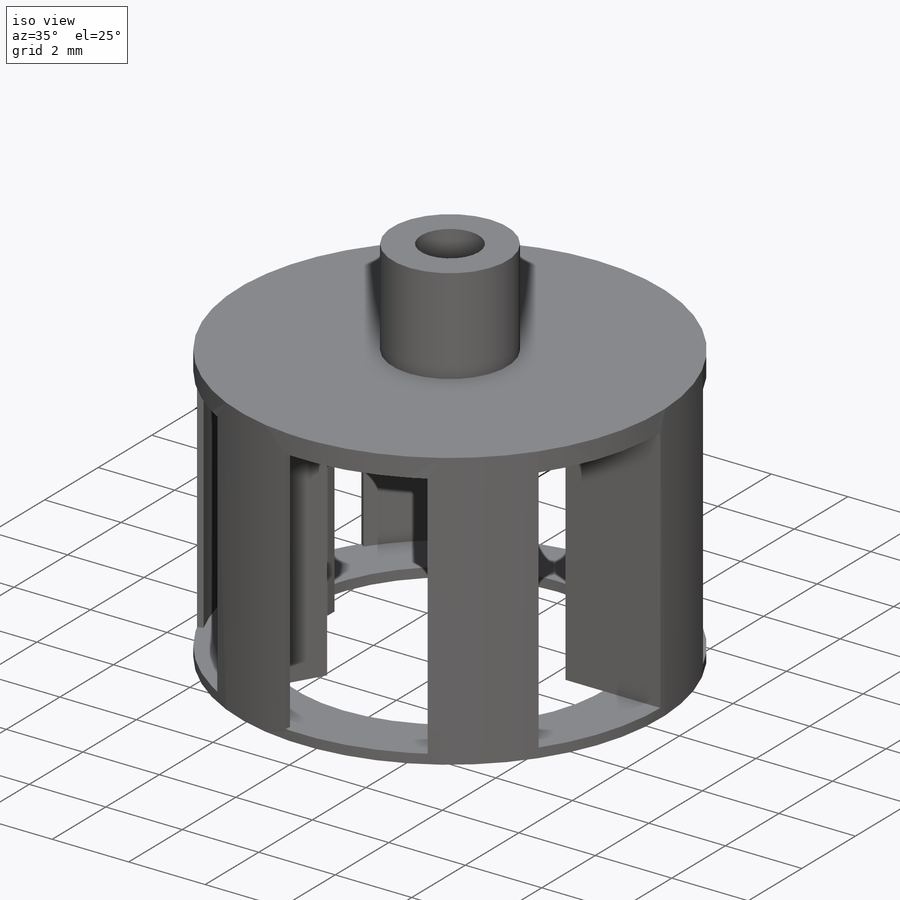
[diagram: iso view]
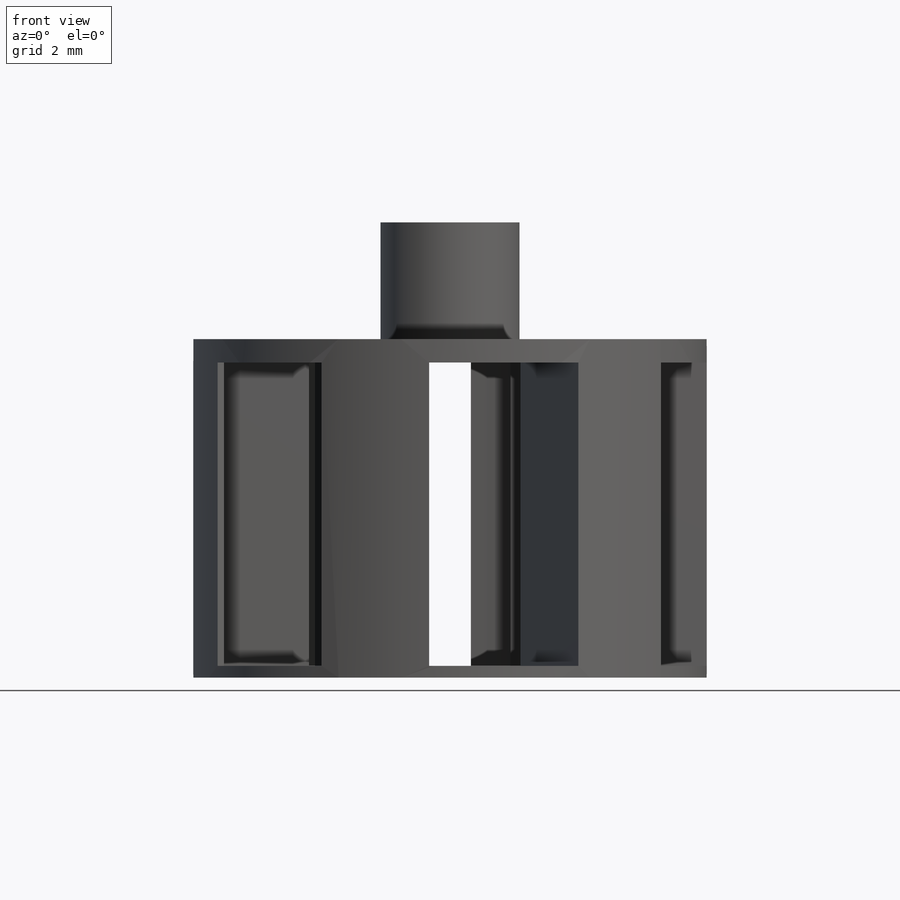
[diagram: front view]
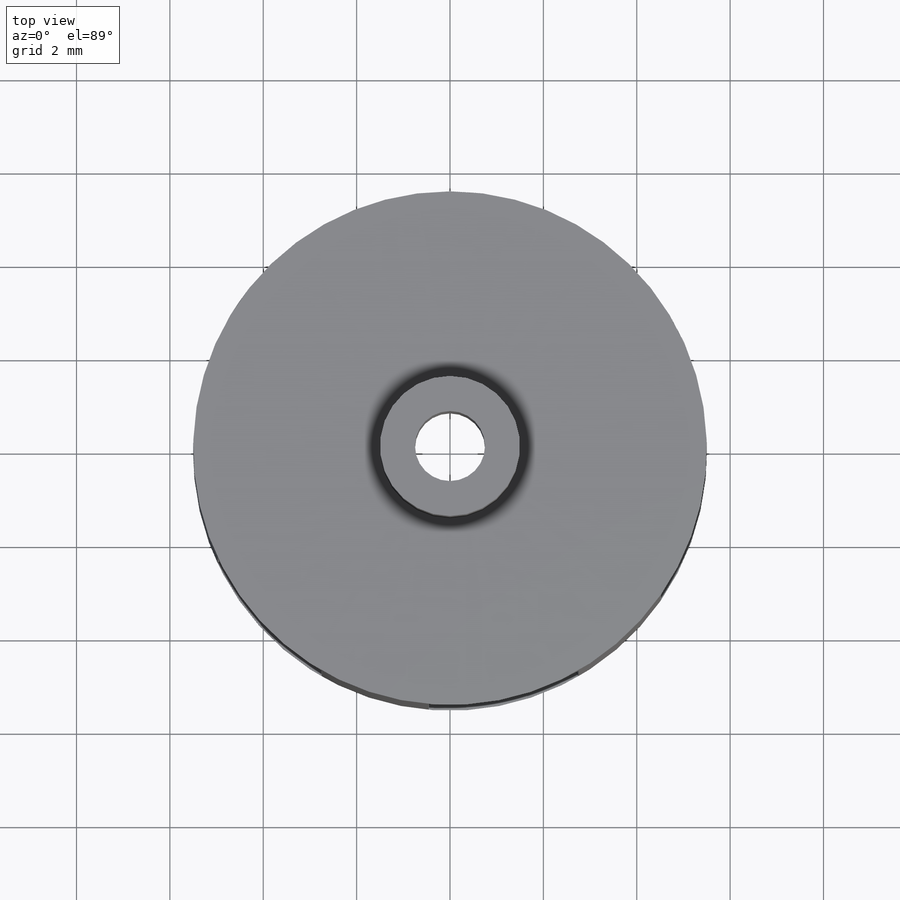
[diagram: top view]
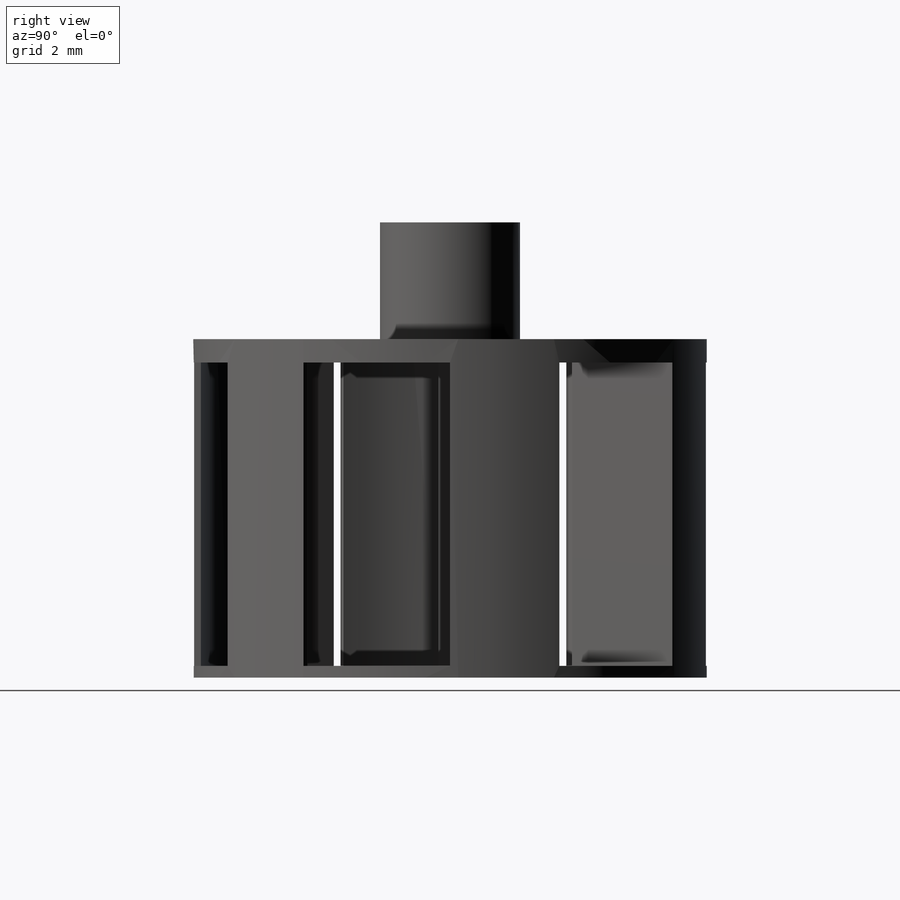
[diagram: right view]
SOLIDWORKS PART (.sldprt)
format: sldprt  version: not decoded by parser v0  size: 205,824 bytes
history: native  units: mm
features: sketch x5, extrude x4, material x1, pattern_circular x1, cut_extrude x1 (+11 scaffold rows collapsed)
feature tree (23):
  scaffold x11  (default folders/planes/origin — collapsed)
  material  "Material <not specified>"
  sketch  "Sketch1"  dims[D1=11.0mm D2=8.0mm D3=~2.62897mm]
  extrude  "Boss-Extrude1"  Depth=0.5mm
  sketch  "Sketch2"  dims[D1=1.5mm D2=3.0mm]
  extrude  "Boss-Extrude2"  Depth=2.5mm
  sketch  "Sketch3"  dims[c1.D1=10.7mm c1.D2=5.5mm c2.D1=10.7mm c2.D3=5.5mm c2.D2=2.4mm c3.D1=2.48mm c3.D3=0.25mm]
  extrude  "Boss-Extrude3"  Depth=6.5mm
  pattern_circular  "CirPattern1"  Count=6 Angle=360deg
  sketch  "Sketch4"  dims[D1=8.0mm D2=11.0mm]
  extrude  "Boss-Extrude4"  Depth=0.25mm
  sketch  "Sketch5"  dims[D1=1.5mm]
  cut_extrude  "Cut-Extrude1"  [1 undecoded]
decode coverage: 10 of 11 modeling features carry decoded parameters
note: ~ marks probable driven/reference dimensions
note: 1 parameter value undecoded
note: suppression state not decoded; provenance and decode notes live in map.json
